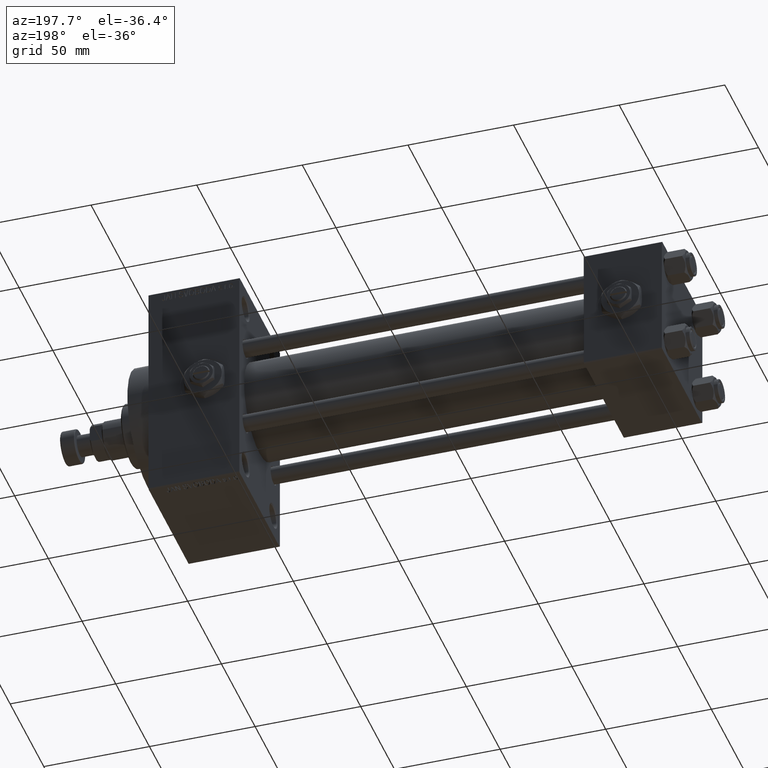
[diagram: clean part render]
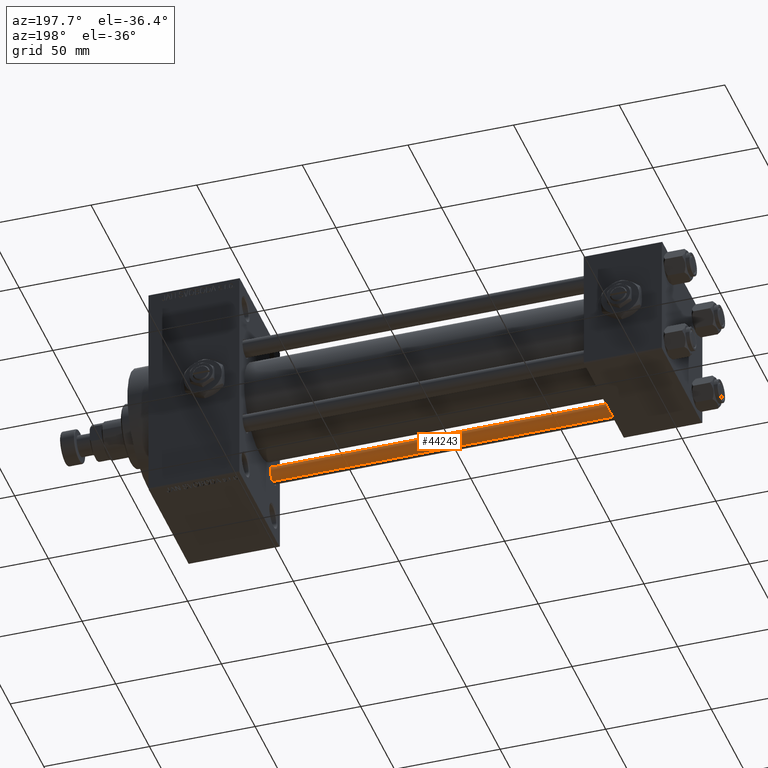
[diagram: same view with one face highlighted and labeled with its STEP entity id]
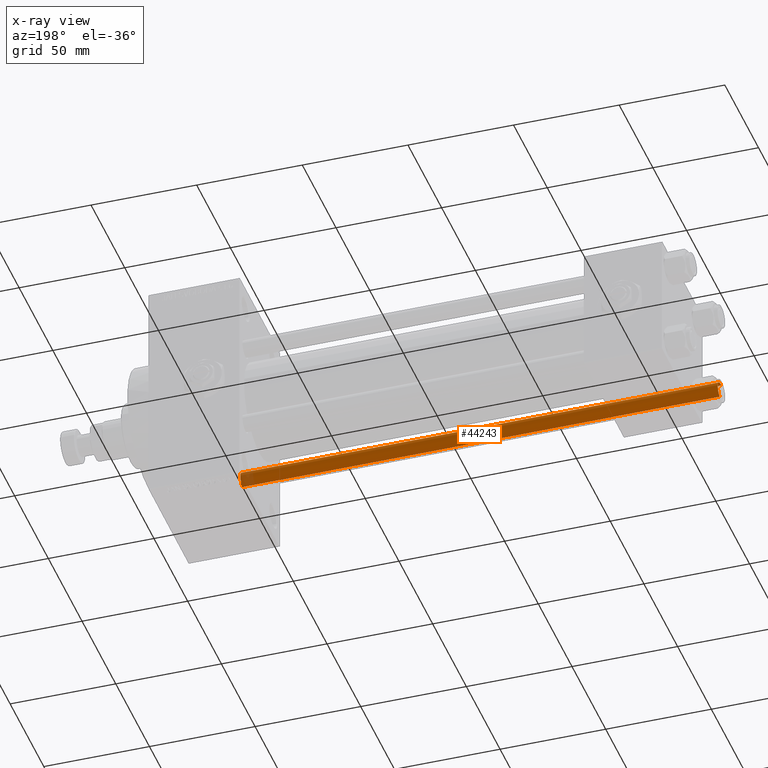
[diagram: x-ray of the same camera — body ghosted, the highlighted face saturated]
A machine part, auxiliary view. The second image highlights one B-rep face of the part: STEP entity #44243.
The next image is the same camera in x-ray: the body ghosted, the highlighted face saturated — about 3% of this face is hidden behind the body in this view.
In plain terms, the highlighted cylindrical surface (edge-blend (fillet) strip) has radius 4 mm, axis along (-1, 0, 0).
Its self-contained STEP definition (entity closure, byte-faithful):
#138 = EDGE_CURVE ( 'NONE', #2274, #3512, #34134, .T. ) ;
#455 = CARTESIAN_POINT ( 'NONE',  ( 0.000000000000000000, 0.000000000000000000, 227.0000000000000000 ) ) ;
#1202 = DIRECTION ( 'NONE',  ( -1.000000000000000000, 0.000000000000000000, 0.000000000000000000 ) ) ;
#2017 = AXIS2_PLACEMENT_3D ( 'NONE', #14746, #18020, #45429 ) ;
#2274 = VERTEX_POINT ( 'NONE', #36461 ) ;
#3512 = VERTEX_POINT ( 'NONE', #16486 ) ;
#3723 = VERTEX_POINT ( 'NONE', #30969 ) ;
#3771 = ORIENTED_EDGE ( 'NONE', *, *, #33194, .F. ) ;
#6284 = LINE ( 'NONE', #49037, #13724 ) ;
#9636 = VECTOR ( 'NONE', #40993, 1000.000000000000000 ) ;
#9798 = CARTESIAN_POINT ( 'NONE',  ( 4.000000000000000000, 4.898587196589411843E-16, 227.0000000000000000 ) ) ;
#10676 = DIRECTION ( 'NONE',  ( 1.000000000000000000, 0.000000000000000000, 0.000000000000000000 ) ) ;
#13724 = VECTOR ( 'NONE', #22370, 1000.000000000000000 ) ;
#14746 = CARTESIAN_POINT ( 'NONE',  ( 0.000000000000000000, 0.000000000000000000, 226.5000000000001421 ) ) ;
#16037 = CYLINDRICAL_SURFACE ( 'NONE', #27339, 4.000000000000000000 ) ;
#16486 = CARTESIAN_POINT ( 'NONE',  ( -4.000000000000000000, 0.000000000000000000, 226.5000000000001421 ) ) ;
#17261 = EDGE_LOOP ( 'NONE', ( #3771, #17722, #35903, #41363 ) ) ;
#17722 = ORIENTED_EDGE ( 'NONE', *, *, #138, .T. ) ;
#18020 = DIRECTION ( 'NONE',  ( 0.000000000000000000, 0.000000000000000000, -1.000000000000000000 ) ) ;
#22370 = DIRECTION ( 'NONE',  ( -0.000000000000000000, -0.000000000000000000, -1.000000000000000000 ) ) ;
#22744 = CARTESIAN_POINT ( 'NONE',  ( 0.000000000000000000, 0.000000000000000000, 0.5000000000002224887 ) ) ;
#24072 = FACE_OUTER_BOUND ( 'NONE', #17261, .T. ) ;
#24884 = LINE ( 'NONE', #9798, #9636 ) ;
#25458 = CARTESIAN_POINT ( 'NONE',  ( 4.000000000000000000, 4.898587196589411843E-16, 0.5000000000002224887 ) ) ;
#25633 = EDGE_CURVE ( 'NONE', #3723, #40295, #32804, .T. ) ;
#27339 = AXIS2_PLACEMENT_3D ( 'NONE', #455, #35660, #1202 ) ;
#30969 = CARTESIAN_POINT ( 'NONE',  ( -4.000000000000000000, 0.000000000000000000, 0.5000000000002224887 ) ) ;
#32804 = CIRCLE ( 'NONE', #35227, 4.000000000000000000 ) ;
#33194 = EDGE_CURVE ( 'NONE', #2274, #40295, #24884, .T. ) ;
#34134 = CIRCLE ( 'NONE', #2017, 4.000000000000000000 ) ;
#35227 = AXIS2_PLACEMENT_3D ( 'NONE', #22744, #49656, #10676 ) ;
#35308 = EDGE_CURVE ( 'NONE', #3512, #3723, #6284, .T. ) ;
#35660 = DIRECTION ( 'NONE',  ( -0.000000000000000000, -0.000000000000000000, -1.000000000000000000 ) ) ;
#35903 = ORIENTED_EDGE ( 'NONE', *, *, #35308, .T. ) ;
#36461 = CARTESIAN_POINT ( 'NONE',  ( 4.000000000000000000, 4.898587196589411843E-16, 226.5000000000001421 ) ) ;
#40295 = VERTEX_POINT ( 'NONE', #25458 ) ;
#40993 = DIRECTION ( 'NONE',  ( -0.000000000000000000, -0.000000000000000000, -1.000000000000000000 ) ) ;
#41363 = ORIENTED_EDGE ( 'NONE', *, *, #25633, .T. ) ;
#44243 = ADVANCED_FACE ( 'NONE', ( #24072 ), #16037, .T. ) ;
#45429 = DIRECTION ( 'NONE',  ( 1.000000000000000000, 0.000000000000000000, 0.000000000000000000 ) ) ;
#49037 = CARTESIAN_POINT ( 'NONE',  ( -4.000000000000000000, 0.000000000000000000, 227.0000000000000000 ) ) ;
#49656 = DIRECTION ( 'NONE',  ( -0.000000000000000000, -0.000000000000000000, 1.000000000000000000 ) ) ;